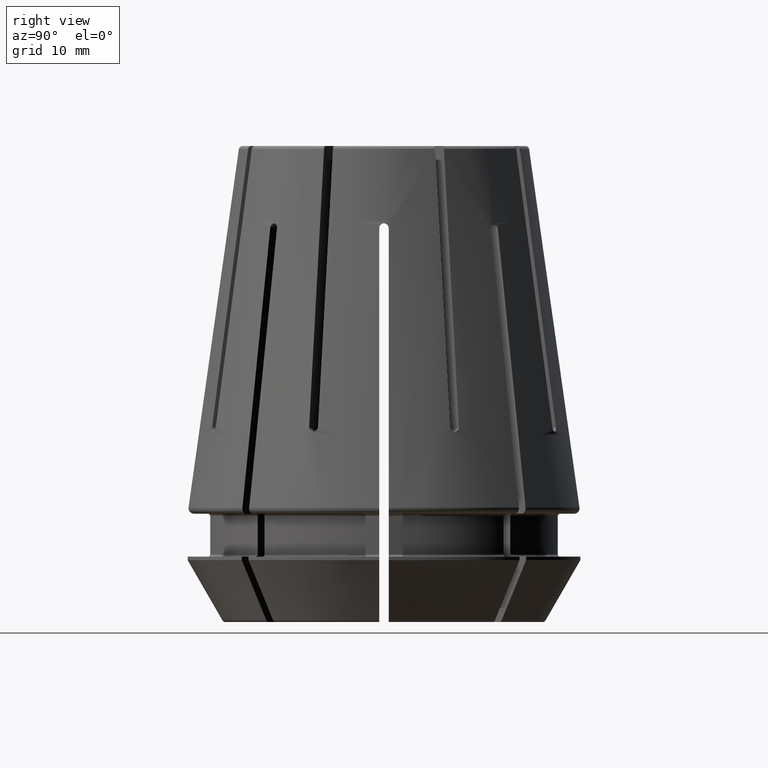
[diagram: clean part render]
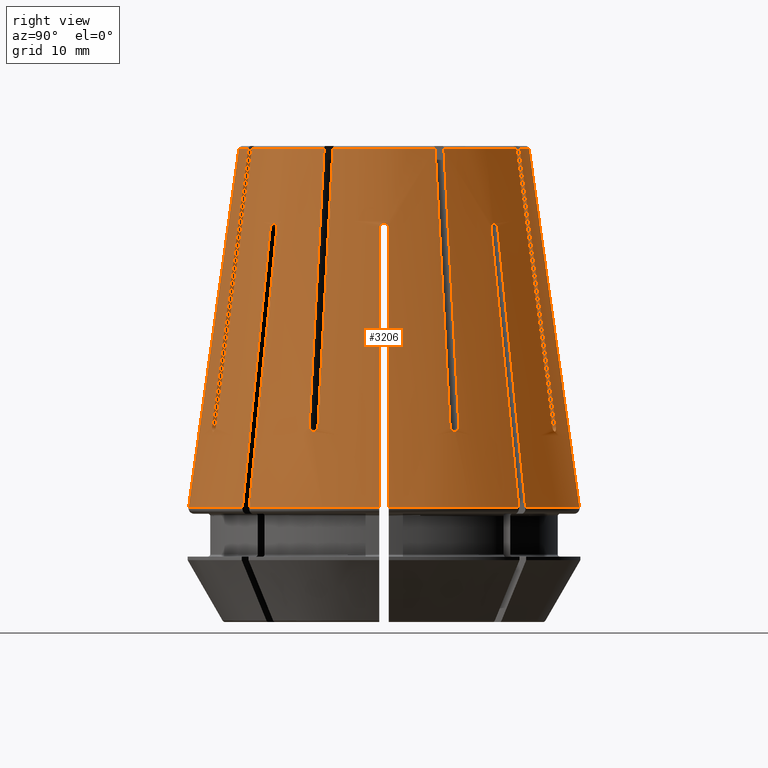
[diagram: same view with one face highlighted and labeled with its STEP entity id]
A machine part, right view. The second image highlights one B-rep face of the part: STEP entity #3206.
In plain terms, the highlighted conical surface has half-angle 8 deg.
Its self-contained STEP definition (entity closure, byte-faithful):
#393=CONICAL_SURFACE('',#3405,12.1572882076961,0.139626340159547);
#419=B_SPLINE_CURVE_WITH_KNOTS('',3,(#4626,#4627,#4628,#4629,#4630),
 .UNSPECIFIED.,.F.,.F.,(4,1,4),(8.67361737988403E-19,0.000625396481745378,
0.00125079296349075),.UNSPECIFIED.);
#421=B_SPLINE_CURVE_WITH_KNOTS('',3,(#4643,#4644,#4645,#4646,#4647),
 .UNSPECIFIED.,.F.,.F.,(4,1,4),(0.,0.000625396481745373,0.00125079296349075),
 .UNSPECIFIED.);
#423=B_SPLINE_CURVE_WITH_KNOTS('',3,(#4660,#4661,#4662,#4663,#4664),
 .UNSPECIFIED.,.F.,.F.,(4,1,4),(0.,0.00062539648174536,0.00125079296349072),
 .UNSPECIFIED.);
#425=B_SPLINE_CURVE_WITH_KNOTS('',3,(#4677,#4678,#4679,#4680,#4681),
 .UNSPECIFIED.,.F.,.F.,(4,1,4),(8.67361737988403E-19,0.000625396481745377,
0.00125079296349075),.UNSPECIFIED.);
#426=B_SPLINE_CURVE_WITH_KNOTS('',3,(#4683,#4684,#4685,#4686),
 .UNSPECIFIED.,.F.,.F.,(4,4),(0.00157891457330598,0.0252815484503016),
 .UNSPECIFIED.);
#427=B_SPLINE_CURVE_WITH_KNOTS('',3,(#4689,#4690,#4691,#4692,#4693,#4694,
#4695),.UNSPECIFIED.,.F.,.F.,(4,1,1,1,4),(0.,0.000319833708804002,0.000639667417608004,
0.000959501126412005,0.00127933483521601),.UNSPECIFIED.);
#428=B_SPLINE_CURVE_WITH_KNOTS('',3,(#4697,#4698,#4699,#4700),
 .UNSPECIFIED.,.F.,.F.,(4,4),(0.00157891457330597,0.0252815484503016),
 .UNSPECIFIED.);
#429=B_SPLINE_CURVE_WITH_KNOTS('',3,(#4704,#4705,#4706,#4707),
 .UNSPECIFIED.,.F.,.F.,(4,4),(0.0219629442518745,0.0456655781271856),
 .UNSPECIFIED.);
#430=B_SPLINE_CURVE_WITH_KNOTS('',3,(#4709,#4710,#4711,#4712,#4713,#4714,
#4715),.UNSPECIFIED.,.F.,.F.,(4,1,1,1,4),(5.42101086242752E-20,0.00031983370880401,
0.000639667417608021,0.000959501126412031,0.00127933483521604),
 .UNSPECIFIED.);
#431=B_SPLINE_CURVE_WITH_KNOTS('',3,(#4717,#4718,#4719,#4720),
 .UNSPECIFIED.,.F.,.F.,(4,4),(0.0219629442518745,0.0456655781271856),
 .UNSPECIFIED.);
#432=B_SPLINE_CURVE_WITH_KNOTS('',3,(#4724,#4725,#4726,#4727),
 .UNSPECIFIED.,.F.,.F.,(4,4),(2.01966674780406E-7,0.023702835843683),
 .UNSPECIFIED.);
#433=B_SPLINE_CURVE_WITH_KNOTS('',3,(#4729,#4730,#4731,#4732,#4733,#4734,
#4735),.UNSPECIFIED.,.F.,.F.,(4,1,1,1,4),(3.46944695195361E-18,0.000319833708804021,
0.000639667417608039,0.000959501126412057,0.00127933483521608),
 .UNSPECIFIED.);
#434=B_SPLINE_CURVE_WITH_KNOTS('',3,(#4737,#4738,#4739,#4740),
 .UNSPECIFIED.,.F.,.F.,(4,4),(2.01966674780836E-7,0.023702835843683),
 .UNSPECIFIED.);
#435=B_SPLINE_CURVE_WITH_KNOTS('',3,(#4744,#4745,#4746,#4747),
 .UNSPECIFIED.,.F.,.F.,(4,4),(0.0219629442518745,0.0456655781271856),
 .UNSPECIFIED.);
#436=B_SPLINE_CURVE_WITH_KNOTS('',3,(#4749,#4750,#4751,#4752,#4753,#4754,
#4755),.UNSPECIFIED.,.F.,.F.,(4,1,1,1,4),(0.,0.000319833708804,0.000639667417608001,
0.000959501126412001,0.001279334835216),.UNSPECIFIED.);
#437=B_SPLINE_CURVE_WITH_KNOTS('',3,(#4757,#4758,#4759,#4760),
 .UNSPECIFIED.,.F.,.F.,(4,4),(0.0219629442518745,0.0456655781271856),
 .UNSPECIFIED.);
#438=B_SPLINE_CURVE_WITH_KNOTS('',3,(#4764,#4765,#4766,#4767),
 .UNSPECIFIED.,.F.,.F.,(4,4),(2.01966674781158E-7,0.023702835843683),
 .UNSPECIFIED.);
#439=B_SPLINE_CURVE_WITH_KNOTS('',3,(#4769,#4770,#4771,#4772,#4773,#4774,
#4775),.UNSPECIFIED.,.F.,.F.,(4,1,1,1,4),(0.,0.00031983370880401,0.000639667417608021,
0.000959501126412031,0.00127933483521604),.UNSPECIFIED.);
#440=B_SPLINE_CURVE_WITH_KNOTS('',3,(#4777,#4778,#4779,#4780),
 .UNSPECIFIED.,.F.,.F.,(4,4),(2.01966674781158E-7,0.023702835843683),
 .UNSPECIFIED.);
#441=B_SPLINE_CURVE_WITH_KNOTS('',3,(#4784,#4785,#4786,#4787),
 .UNSPECIFIED.,.F.,.F.,(4,4),(0.0219629442518745,0.0456655781271856),
 .UNSPECIFIED.);
#442=B_SPLINE_CURVE_WITH_KNOTS('',3,(#4789,#4790,#4791,#4792,#4793,#4794,
#4795),.UNSPECIFIED.,.F.,.F.,(4,1,1,1,4),(0.,0.000319833708804005,0.00063966741760801,
0.000959501126412014,0.00127933483521602),.UNSPECIFIED.);
#443=B_SPLINE_CURVE_WITH_KNOTS('',3,(#4797,#4798,#4799,#4800),
 .UNSPECIFIED.,.F.,.F.,(4,4),(0.0219629442518745,0.0456655781271856),
 .UNSPECIFIED.);
#444=B_SPLINE_CURVE_WITH_KNOTS('',3,(#4804,#4805,#4806,#4807),
 .UNSPECIFIED.,.F.,.F.,(4,4),(0.00157891457330599,0.0252815484503016),
 .UNSPECIFIED.);
#445=B_SPLINE_CURVE_WITH_KNOTS('',3,(#4809,#4810,#4811,#4812,#4813,#4814,
#4815),.UNSPECIFIED.,.F.,.F.,(4,1,1,1,4),(0.,0.000319833708791347,0.000639667417582694,
0.00095950112637404,0.00127933483516539),.UNSPECIFIED.);
#446=B_SPLINE_CURVE_WITH_KNOTS('',3,(#4817,#4818,#4819,#4820),
 .UNSPECIFIED.,.F.,.F.,(4,4),(0.00157891457330598,0.0252815484503016),
 .UNSPECIFIED.);
#447=B_SPLINE_CURVE_WITH_KNOTS('',3,(#4824,#4825,#4826,#4827),
 .UNSPECIFIED.,.F.,.F.,(4,4),(0.0219629442518745,0.0456655781271856),
 .UNSPECIFIED.);
#448=B_SPLINE_CURVE_WITH_KNOTS('',3,(#4829,#4830,#4831,#4832,#4833,#4834,
#4835),.UNSPECIFIED.,.F.,.F.,(4,1,1,1,4),(0.,0.000319833708804005,0.000639667417608009,
0.000959501126412014,0.00127933483521602),.UNSPECIFIED.);
#449=B_SPLINE_CURVE_WITH_KNOTS('',3,(#4837,#4838,#4839,#4840),
 .UNSPECIFIED.,.F.,.F.,(4,4),(0.0219629442518745,0.0456655781271856),
 .UNSPECIFIED.);
#450=B_SPLINE_CURVE_WITH_KNOTS('',3,(#4843,#4844,#4845,#4846),
 .UNSPECIFIED.,.F.,.F.,(4,4),(2.0196762156207E-7,0.0235755884945952),
 .UNSPECIFIED.);
#451=B_SPLINE_CURVE_WITH_KNOTS('',3,(#4850,#4851,#4852,#4853),
 .UNSPECIFIED.,.F.,.F.,(4,4),(2.0196762156207E-7,0.0235755884945953),
 .UNSPECIFIED.);
#452=B_SPLINE_CURVE_WITH_KNOTS('',3,(#4855,#4856,#4857,#4858,#4859),
 .UNSPECIFIED.,.F.,.F.,(4,1,4),(8.67361737988404E-19,0.000625396481745377,
0.00125079296349075),.UNSPECIFIED.);
#453=B_SPLINE_CURVE_WITH_KNOTS('',3,(#4861,#4862,#4863,#4864),
 .UNSPECIFIED.,.F.,.F.,(4,4),(2.0196762156207E-7,0.0235755884945952),
 .UNSPECIFIED.);
#454=B_SPLINE_CURVE_WITH_KNOTS('',3,(#4868,#4869,#4870,#4871),
 .UNSPECIFIED.,.F.,.F.,(4,4),(2.0196762156207E-7,0.0235755884945953),
 .UNSPECIFIED.);
#455=B_SPLINE_CURVE_WITH_KNOTS('',3,(#4872,#4873,#4874,#4875),
 .UNSPECIFIED.,.F.,.F.,(4,4),(2.0196762156207E-7,0.0235755884945952),
 .UNSPECIFIED.);
#456=B_SPLINE_CURVE_WITH_KNOTS('',3,(#4879,#4880,#4881,#4882),
 .UNSPECIFIED.,.F.,.F.,(4,4),(2.0196762156207E-7,0.0235755884945953),
 .UNSPECIFIED.);
#457=B_SPLINE_CURVE_WITH_KNOTS('',3,(#4884,#4885,#4886,#4887,#4888),
 .UNSPECIFIED.,.F.,.F.,(4,1,4),(8.67361737988404E-19,0.000625396481745376,
0.00125079296349075),.UNSPECIFIED.);
#458=B_SPLINE_CURVE_WITH_KNOTS('',3,(#4890,#4891,#4892,#4893),
 .UNSPECIFIED.,.F.,.F.,(4,4),(2.0196762156207E-7,0.0235755884945952),
 .UNSPECIFIED.);
#459=B_SPLINE_CURVE_WITH_KNOTS('',3,(#4897,#4898,#4899,#4900),
 .UNSPECIFIED.,.F.,.F.,(4,4),(0.00204161722724849,0.0256170037541977),
 .UNSPECIFIED.);
#460=B_SPLINE_CURVE_WITH_KNOTS('',3,(#4901,#4902,#4903,#4904),
 .UNSPECIFIED.,.F.,.F.,(4,4),(0.00204161722724849,0.0256170037541977),
 .UNSPECIFIED.);
#461=B_SPLINE_CURVE_WITH_KNOTS('',3,(#4908,#4909,#4910,#4911),
 .UNSPECIFIED.,.F.,.F.,(4,4),(0.00204161722724848,0.0256170037541977),
 .UNSPECIFIED.);
#462=B_SPLINE_CURVE_WITH_KNOTS('',3,(#4913,#4914,#4915,#4916,#4917),
 .UNSPECIFIED.,.F.,.F.,(4,1,4),(0.,0.000625396481745361,0.00125079296349072),
 .UNSPECIFIED.);
#463=B_SPLINE_CURVE_WITH_KNOTS('',3,(#4919,#4920,#4921,#4922),
 .UNSPECIFIED.,.F.,.F.,(4,4),(0.00204161722724848,0.0256170037541977),
 .UNSPECIFIED.);
#464=B_SPLINE_CURVE_WITH_KNOTS('',3,(#4926,#4927,#4928,#4929),
 .UNSPECIFIED.,.F.,.F.,(4,4),(0.00204161722724849,0.0256170037541977),
 .UNSPECIFIED.);
#465=B_SPLINE_CURVE_WITH_KNOTS('',3,(#4930,#4931,#4932,#4933),
 .UNSPECIFIED.,.F.,.F.,(4,4),(0.00204161722724848,0.0256170037541977),
 .UNSPECIFIED.);
#466=B_SPLINE_CURVE_WITH_KNOTS('',3,(#4937,#4938,#4939,#4940),
 .UNSPECIFIED.,.F.,.F.,(4,4),(0.00204161722724849,0.0256170037541977),
 .UNSPECIFIED.);
#467=B_SPLINE_CURVE_WITH_KNOTS('',3,(#4942,#4943,#4944,#4945,#4946),
 .UNSPECIFIED.,.F.,.F.,(4,1,4),(1.44096954211131E-17,0.000625396481745375,
0.00125079296349073),.UNSPECIFIED.);
#468=B_SPLINE_CURVE_WITH_KNOTS('',3,(#4948,#4949,#4950,#4951),
 .UNSPECIFIED.,.F.,.F.,(4,4),(0.00204161722724848,0.0256170037541977),
 .UNSPECIFIED.);
#469=B_SPLINE_CURVE_WITH_KNOTS('',3,(#4955,#4956,#4957,#4958),
 .UNSPECIFIED.,.F.,.F.,(4,4),(2.0196762156207E-7,0.0235755884945953),
 .UNSPECIFIED.);
#642=ORIENTED_EDGE('',*,*,#1706,.F.);
#643=ORIENTED_EDGE('',*,*,#1707,.T.);
#644=ORIENTED_EDGE('',*,*,#1708,.T.);
#645=ORIENTED_EDGE('',*,*,#1709,.T.);
#646=ORIENTED_EDGE('',*,*,#1710,.T.);
#647=ORIENTED_EDGE('',*,*,#1711,.T.);
#648=ORIENTED_EDGE('',*,*,#1712,.F.);
#649=ORIENTED_EDGE('',*,*,#1713,.T.);
#650=ORIENTED_EDGE('',*,*,#1714,.T.);
#651=ORIENTED_EDGE('',*,*,#1715,.T.);
#652=ORIENTED_EDGE('',*,*,#1716,.F.);
#653=ORIENTED_EDGE('',*,*,#1717,.T.);
#654=ORIENTED_EDGE('',*,*,#1718,.T.);
#655=ORIENTED_EDGE('',*,*,#1719,.T.);
#656=ORIENTED_EDGE('',*,*,#1720,.F.);
#657=ORIENTED_EDGE('',*,*,#1721,.T.);
#658=ORIENTED_EDGE('',*,*,#1722,.T.);
#659=ORIENTED_EDGE('',*,*,#1723,.T.);
#660=ORIENTED_EDGE('',*,*,#1724,.F.);
#661=ORIENTED_EDGE('',*,*,#1725,.T.);
#662=ORIENTED_EDGE('',*,*,#1726,.F.);
#663=ORIENTED_EDGE('',*,*,#1727,.T.);
#664=ORIENTED_EDGE('',*,*,#1728,.T.);
#665=ORIENTED_EDGE('',*,*,#1729,.T.);
#666=ORIENTED_EDGE('',*,*,#1730,.F.);
#667=ORIENTED_EDGE('',*,*,#1731,.T.);
#668=ORIENTED_EDGE('',*,*,#1732,.T.);
#669=ORIENTED_EDGE('',*,*,#1733,.T.);
#670=ORIENTED_EDGE('',*,*,#1734,.F.);
#671=ORIENTED_EDGE('',*,*,#1735,.T.);
#672=ORIENTED_EDGE('',*,*,#1736,.T.);
#673=ORIENTED_EDGE('',*,*,#1737,.T.);
#674=ORIENTED_EDGE('',*,*,#1705,.T.);
#675=ORIENTED_EDGE('',*,*,#1738,.F.);
#676=ORIENTED_EDGE('',*,*,#1739,.T.);
#677=ORIENTED_EDGE('',*,*,#1740,.T.);
#678=ORIENTED_EDGE('',*,*,#1741,.T.);
#679=ORIENTED_EDGE('',*,*,#1742,.F.);
#680=ORIENTED_EDGE('',*,*,#1743,.T.);
#681=ORIENTED_EDGE('',*,*,#1744,.T.);
#682=ORIENTED_EDGE('',*,*,#1693,.T.);
#683=ORIENTED_EDGE('',*,*,#1745,.F.);
#684=ORIENTED_EDGE('',*,*,#1746,.T.);
#685=ORIENTED_EDGE('',*,*,#1747,.T.);
#686=ORIENTED_EDGE('',*,*,#1748,.T.);
#687=ORIENTED_EDGE('',*,*,#1749,.F.);
#688=ORIENTED_EDGE('',*,*,#1750,.T.);
#689=ORIENTED_EDGE('',*,*,#1751,.F.);
#690=ORIENTED_EDGE('',*,*,#1697,.T.);
#691=ORIENTED_EDGE('',*,*,#1752,.T.);
#692=ORIENTED_EDGE('',*,*,#1753,.T.);
#693=ORIENTED_EDGE('',*,*,#1754,.F.);
#694=ORIENTED_EDGE('',*,*,#1755,.T.);
#695=ORIENTED_EDGE('',*,*,#1756,.T.);
#696=ORIENTED_EDGE('',*,*,#1757,.T.);
#697=ORIENTED_EDGE('',*,*,#1758,.F.);
#698=ORIENTED_EDGE('',*,*,#1701,.T.);
#699=ORIENTED_EDGE('',*,*,#1759,.T.);
#700=ORIENTED_EDGE('',*,*,#1760,.T.);
#701=ORIENTED_EDGE('',*,*,#1761,.F.);
#702=ORIENTED_EDGE('',*,*,#1762,.T.);
#703=ORIENTED_EDGE('',*,*,#1763,.T.);
#704=ORIENTED_EDGE('',*,*,#1764,.T.);
#705=ORIENTED_EDGE('',*,*,#1765,.T.);
#1693=EDGE_CURVE('',#2223,#2225,#419,.T.);
#1697=EDGE_CURVE('',#2227,#2229,#421,.T.);
#1701=EDGE_CURVE('',#2231,#2233,#423,.T.);
#1705=EDGE_CURVE('',#2235,#2237,#425,.T.);
#1706=EDGE_CURVE('',#2238,#2239,#426,.T.);
#1707=EDGE_CURVE('',#2238,#2240,#427,.T.);
#1708=EDGE_CURVE('',#2240,#2241,#428,.T.);
#1709=EDGE_CURVE('',#2241,#2242,#2586,.T.);
#1710=EDGE_CURVE('',#2242,#2243,#429,.F.);
#1711=EDGE_CURVE('',#2243,#2244,#430,.T.);
#1712=EDGE_CURVE('',#2245,#2244,#431,.F.);
#1713=EDGE_CURVE('',#2245,#2246,#2587,.T.);
#1714=EDGE_CURVE('',#2246,#2247,#432,.T.);
#1715=EDGE_CURVE('',#2247,#2248,#433,.T.);
#1716=EDGE_CURVE('',#2249,#2248,#434,.T.);
#1717=EDGE_CURVE('',#2249,#2250,#2588,.T.);
#1718=EDGE_CURVE('',#2250,#2251,#435,.F.);
#1719=EDGE_CURVE('',#2251,#2252,#436,.T.);
#1720=EDGE_CURVE('',#2253,#2252,#437,.F.);
#1721=EDGE_CURVE('',#2253,#2254,#2589,.T.);
#1722=EDGE_CURVE('',#2254,#2255,#438,.T.);
#1723=EDGE_CURVE('',#2255,#2256,#439,.T.);
#1724=EDGE_CURVE('',#2257,#2256,#440,.T.);
#1725=EDGE_CURVE('',#2257,#2258,#2590,.T.);
#1726=EDGE_CURVE('',#2259,#2258,#441,.T.);
#1727=EDGE_CURVE('',#2259,#2260,#442,.T.);
#1728=EDGE_CURVE('',#2260,#2261,#443,.T.);
#1729=EDGE_CURVE('',#2261,#2262,#2591,.T.);
#1730=EDGE_CURVE('',#2263,#2262,#444,.T.);
#1731=EDGE_CURVE('',#2263,#2264,#445,.T.);
#1732=EDGE_CURVE('',#2264,#2265,#446,.T.);
#1733=EDGE_CURVE('',#2265,#2266,#2592,.T.);
#1734=EDGE_CURVE('',#2267,#2266,#447,.T.);
#1735=EDGE_CURVE('',#2267,#2268,#448,.T.);
#1736=EDGE_CURVE('',#2268,#2269,#449,.T.);
#1737=EDGE_CURVE('',#2269,#2239,#2593,.T.);
#1738=EDGE_CURVE('',#2270,#2237,#450,.T.);
#1739=EDGE_CURVE('',#2270,#2271,#2594,.F.);
#1740=EDGE_CURVE('',#2271,#2272,#451,.T.);
#1741=EDGE_CURVE('',#2272,#2273,#452,.T.);
#1742=EDGE_CURVE('',#2274,#2273,#453,.T.);
#1743=EDGE_CURVE('',#2274,#2275,#2595,.F.);
#1744=EDGE_CURVE('',#2275,#2223,#454,.T.);
#1745=EDGE_CURVE('',#2276,#2225,#455,.T.);
#1746=EDGE_CURVE('',#2276,#2277,#2596,.F.);
#1747=EDGE_CURVE('',#2277,#2278,#456,.T.);
#1748=EDGE_CURVE('',#2278,#2279,#457,.T.);
#1749=EDGE_CURVE('',#2280,#2279,#458,.T.);
#1750=EDGE_CURVE('',#2280,#2281,#2597,.F.);
#1751=EDGE_CURVE('',#2227,#2281,#459,.T.);
#1752=EDGE_CURVE('',#2229,#2282,#460,.T.);
#1753=EDGE_CURVE('',#2282,#2283,#2598,.F.);
#1754=EDGE_CURVE('',#2284,#2283,#461,.T.);
#1755=EDGE_CURVE('',#2284,#2285,#462,.T.);
#1756=EDGE_CURVE('',#2285,#2286,#463,.T.);
#1757=EDGE_CURVE('',#2286,#2287,#2599,.F.);
#1758=EDGE_CURVE('',#2231,#2287,#464,.T.);
#1759=EDGE_CURVE('',#2233,#2288,#465,.T.);
#1760=EDGE_CURVE('',#2288,#2289,#2600,.F.);
#1761=EDGE_CURVE('',#2290,#2289,#466,.T.);
#1762=EDGE_CURVE('',#2290,#2291,#467,.T.);
#1763=EDGE_CURVE('',#2291,#2292,#468,.T.);
#1764=EDGE_CURVE('',#2292,#2293,#2601,.F.);
#1765=EDGE_CURVE('',#2293,#2235,#469,.T.);
#2223=VERTEX_POINT('',#4617);
#2225=VERTEX_POINT('',#4625);
#2227=VERTEX_POINT('',#4634);
#2229=VERTEX_POINT('',#4642);
#2231=VERTEX_POINT('',#4651);
#2233=VERTEX_POINT('',#4659);
#2235=VERTEX_POINT('',#4668);
#2237=VERTEX_POINT('',#4676);
#2238=VERTEX_POINT('',#4687);
#2239=VERTEX_POINT('',#4688);
#2240=VERTEX_POINT('',#4696);
#2241=VERTEX_POINT('',#4701);
#2242=VERTEX_POINT('',#4703);
#2243=VERTEX_POINT('',#4708);
#2244=VERTEX_POINT('',#4716);
#2245=VERTEX_POINT('',#4721);
#2246=VERTEX_POINT('',#4723);
#2247=VERTEX_POINT('',#4728);
#2248=VERTEX_POINT('',#4736);
#2249=VERTEX_POINT('',#4741);
#2250=VERTEX_POINT('',#4743);
#2251=VERTEX_POINT('',#4748);
#2252=VERTEX_POINT('',#4756);
#2253=VERTEX_POINT('',#4761);
#2254=VERTEX_POINT('',#4763);
#2255=VERTEX_POINT('',#4768);
#2256=VERTEX_POINT('',#4776);
#2257=VERTEX_POINT('',#4781);
#2258=VERTEX_POINT('',#4783);
#2259=VERTEX_POINT('',#4788);
#2260=VERTEX_POINT('',#4796);
#2261=VERTEX_POINT('',#4801);
#2262=VERTEX_POINT('',#4803);
#2263=VERTEX_POINT('',#4808);
#2264=VERTEX_POINT('',#4816);
#2265=VERTEX_POINT('',#4821);
#2266=VERTEX_POINT('',#4823);
#2267=VERTEX_POINT('',#4828);
#2268=VERTEX_POINT('',#4836);
#2269=VERTEX_POINT('',#4841);
#2270=VERTEX_POINT('',#4847);
#2271=VERTEX_POINT('',#4849);
#2272=VERTEX_POINT('',#4854);
#2273=VERTEX_POINT('',#4860);
#2274=VERTEX_POINT('',#4865);
#2275=VERTEX_POINT('',#4867);
#2276=VERTEX_POINT('',#4876);
#2277=VERTEX_POINT('',#4878);
#2278=VERTEX_POINT('',#4883);
#2279=VERTEX_POINT('',#4889);
#2280=VERTEX_POINT('',#4894);
#2281=VERTEX_POINT('',#4896);
#2282=VERTEX_POINT('',#4905);
#2283=VERTEX_POINT('',#4907);
#2284=VERTEX_POINT('',#4912);
#2285=VERTEX_POINT('',#4918);
#2286=VERTEX_POINT('',#4923);
#2287=VERTEX_POINT('',#4925);
#2288=VERTEX_POINT('',#4934);
#2289=VERTEX_POINT('',#4936);
#2290=VERTEX_POINT('',#4941);
#2291=VERTEX_POINT('',#4947);
#2292=VERTEX_POINT('',#4952);
#2293=VERTEX_POINT('',#4954);
#2586=CIRCLE('',#3406,16.4279548476843);
#2587=CIRCLE('',#3407,16.4279548476843);
#2588=CIRCLE('',#3408,16.4279548476843);
#2589=CIRCLE('',#3409,16.4279548476843);
#2590=CIRCLE('',#3410,16.4279548476843);
#2591=CIRCLE('',#3411,16.4279548476843);
#2592=CIRCLE('',#3412,16.4279548476843);
#2593=CIRCLE('',#3413,16.4279548476843);
#2594=CIRCLE('',#3414,12.1935826069737);
#2595=CIRCLE('',#3415,12.1935826069737);
#2596=CIRCLE('',#3416,12.1935826069737);
#2597=CIRCLE('',#3417,12.1935826069737);
#2598=CIRCLE('',#3418,12.1935826069737);
#2599=CIRCLE('',#3419,12.1935826069737);
#2600=CIRCLE('',#3420,12.1935826069737);
#2601=CIRCLE('',#3421,12.1935826069737);
#2762=EDGE_LOOP('',(#642,#643,#644,#645,#646,#647,#648,#649,#650,#651,#652,
#653,#654,#655,#656,#657,#658,#659,#660,#661,#662,#663,#664,#665,#666,#667,
#668,#669,#670,#671,#672,#673));
#2763=EDGE_LOOP('',(#674,#675,#676,#677,#678,#679,#680,#681,#682,#683,#684,
#685,#686,#687,#688,#689,#690,#691,#692,#693,#694,#695,#696,#697,#698,#699,
#700,#701,#702,#703,#704,#705));
#2950=FACE_BOUND('',#2762,.T.);
#2951=FACE_BOUND('',#2763,.T.);
#3206=ADVANCED_FACE('',(#2950,#2951),#393,.T.);
#3405=AXIS2_PLACEMENT_3D('',#4682,#3777,#3778);
#3406=AXIS2_PLACEMENT_3D('',#4702,#3779,#3780);
#3407=AXIS2_PLACEMENT_3D('',#4722,#3781,#3782);
#3408=AXIS2_PLACEMENT_3D('',#4742,#3783,#3784);
#3409=AXIS2_PLACEMENT_3D('',#4762,#3785,#3786);
#3410=AXIS2_PLACEMENT_3D('',#4782,#3787,#3788);
#3411=AXIS2_PLACEMENT_3D('',#4802,#3789,#3790);
#3412=AXIS2_PLACEMENT_3D('',#4822,#3791,#3792);
#3413=AXIS2_PLACEMENT_3D('',#4842,#3793,#3794);
#3414=AXIS2_PLACEMENT_3D('',#4848,#3795,#3796);
#3415=AXIS2_PLACEMENT_3D('',#4866,#3797,#3798);
#3416=AXIS2_PLACEMENT_3D('',#4877,#3799,#3800);
#3417=AXIS2_PLACEMENT_3D('',#4895,#3801,#3802);
#3418=AXIS2_PLACEMENT_3D('',#4906,#3803,#3804);
#3419=AXIS2_PLACEMENT_3D('',#4924,#3805,#3806);
#3420=AXIS2_PLACEMENT_3D('',#4935,#3807,#3808);
#3421=AXIS2_PLACEMENT_3D('',#4953,#3809,#3810);
#3777=DIRECTION('',(0.,0.,-1.));
#3778=DIRECTION('',(-1.,0.,0.));
#3779=DIRECTION('',(0.,0.,1.));
#3780=DIRECTION('',(1.,0.,0.));
#3781=DIRECTION('',(0.,0.,1.));
#3782=DIRECTION('',(1.,0.,0.));
#3783=DIRECTION('',(0.,0.,1.));
#3784=DIRECTION('',(1.,0.,0.));
#3785=DIRECTION('',(0.,0.,1.));
#3786=DIRECTION('',(1.,0.,0.));
#3787=DIRECTION('',(0.,0.,1.));
#3788=DIRECTION('',(1.,0.,0.));
#3789=DIRECTION('',(0.,0.,1.));
#3790=DIRECTION('',(1.,0.,0.));
#3791=DIRECTION('',(0.,0.,1.));
#3792=DIRECTION('',(1.,0.,0.));
#3793=DIRECTION('',(0.,0.,1.));
#3794=DIRECTION('',(1.,0.,0.));
#3795=DIRECTION('',(0.,0.,1.));
#3796=DIRECTION('',(1.,0.,0.));
#3797=DIRECTION('',(0.,0.,1.));
#3798=DIRECTION('',(1.,0.,0.));
#3799=DIRECTION('',(0.,0.,1.));
#3800=DIRECTION('',(1.,0.,0.));
#3801=DIRECTION('',(0.,0.,1.));
#3802=DIRECTION('',(1.,0.,0.));
#3803=DIRECTION('',(0.,0.,1.));
#3804=DIRECTION('',(1.,0.,0.));
#3805=DIRECTION('',(0.,0.,1.));
#3806=DIRECTION('',(1.,0.,0.));
#3807=DIRECTION('',(0.,0.,1.));
#3808=DIRECTION('',(1.,0.,0.));
#3809=DIRECTION('',(0.,0.,1.));
#3810=DIRECTION('',(1.,0.,0.));
#4617=CARTESIAN_POINT('',(-5.55034836952397,-14.4449766815013,7.29599132422869));
#4625=CARTESIAN_POINT('',(-6.289451995533,-14.1388299356092,7.29599132422872));
#4626=CARTESIAN_POINT('',(-5.55034836952397,-14.4449766815013,7.2959913242287));
#4627=CARTESIAN_POINT('',(-5.56161432987369,-14.4721751157707,7.08658929220454));
#4628=CARTESIAN_POINT('',(-5.95517157857956,-14.3770982715302,6.71341148661196));
#4629=CARTESIAN_POINT('',(-6.30071803966698,-14.1660285721518,7.08658773489447));
#4630=CARTESIAN_POINT('',(-6.289451995533,-14.1388299356092,7.2959913242287));
#4634=CARTESIAN_POINT('',(-14.4449766815013,5.55034836952397,7.2959913242287));
#4642=CARTESIAN_POINT('',(-14.1388299356092,6.289451995533,7.2959913242287));
#4643=CARTESIAN_POINT('',(-14.4449766815013,5.55034836952397,7.2959913242287));
#4644=CARTESIAN_POINT('',(-14.4721751157707,5.5616143298737,7.08658929220455));
#4645=CARTESIAN_POINT('',(-14.3770982715302,5.95517157857954,6.7134114866119));
#4646=CARTESIAN_POINT('',(-14.1660285721517,6.30071803966698,7.08658773489447));
#4647=CARTESIAN_POINT('',(-14.1388299356092,6.289451995533,7.2959913242287));
#4651=CARTESIAN_POINT('',(5.55034836952397,14.4449766815013,7.29599132422869));
#4659=CARTESIAN_POINT('',(6.289451995533,14.1388299356092,7.29599132422868));
#4660=CARTESIAN_POINT('',(5.55034836952397,14.4449766815013,7.29599132422869));
#4661=CARTESIAN_POINT('',(5.5616143298737,14.4721751157707,7.08658929220455));
#4662=CARTESIAN_POINT('',(5.95517157857953,14.3770982715302,6.71341148661191));
#4663=CARTESIAN_POINT('',(6.30071803966698,14.1660285721518,7.08658773489446));
#4664=CARTESIAN_POINT('',(6.289451995533,14.1388299356092,7.29599132422868));
#4668=CARTESIAN_POINT('',(14.4449766815013,-5.55034836952397,7.29599132422869));
#4676=CARTESIAN_POINT('',(14.1388299356092,-6.289451995533,7.29599132422872));
#4677=CARTESIAN_POINT('',(14.4449766815013,-5.55034836952397,7.2959913242287));
#4678=CARTESIAN_POINT('',(14.4721751157707,-5.56161432987369,7.08658929220454));
#4679=CARTESIAN_POINT('',(14.3770982715302,-5.95517157857957,6.71341148661191));
#4680=CARTESIAN_POINT('',(14.1660285721518,-6.30071803966698,7.08658773489447));
#4681=CARTESIAN_POINT('',(14.1388299356092,-6.289451995533,7.2959913242287));
#4682=CARTESIAN_POINT('',(0.,0.,30.9));
#4683=CARTESIAN_POINT('',(8.99660075872335,-9.56228618367257,23.984420616664));
#4684=CARTESIAN_POINT('',(9.77448218600933,-10.3401676109586,16.1605038545526));
#4685=CARTESIAN_POINT('',(10.5522781783614,-11.1179636033107,8.33657010514536));
#4686=CARTESIAN_POINT('',(11.3300316190066,-11.8957170439559,0.512627895432026));
#4687=CARTESIAN_POINT('',(8.99660075872335,-9.56228618367257,23.984420616664));
#4688=CARTESIAN_POINT('',(11.3300316190066,-11.8957170439559,0.512627895432021));
#4689=CARTESIAN_POINT('',(8.99660075872335,-9.56228618367257,23.984420616664));
#4690=CARTESIAN_POINT('',(8.98595662668012,-9.55164205162935,24.091479096517));
#4691=CARTESIAN_POINT('',(9.023722841913,-9.47577642332014,24.3036697339095));
#4692=CARTESIAN_POINT('',(9.2386052151661,-9.23903802384558,24.4479807617733));
#4693=CARTESIAN_POINT('',(9.47534148123743,-9.02403301699258,24.3044065573343));
#4694=CARTESIAN_POINT('',(9.55163982499861,-8.98595440004936,24.0915014919272));
#4695=CARTESIAN_POINT('',(9.56228618367258,-8.99660075872333,23.984420616664));
#4696=CARTESIAN_POINT('',(9.56228618367258,-8.99660075872333,23.984420616664));
#4697=CARTESIAN_POINT('',(9.56228618367258,-8.99660075872333,23.984420616664));
#4698=CARTESIAN_POINT('',(10.3401676109586,-9.77448218600931,16.1605038545526));
#4699=CARTESIAN_POINT('',(11.1179636033107,-10.5522781783614,8.33657010514536));
#4700=CARTESIAN_POINT('',(11.8957170439559,-11.3300316190066,0.512627895432019));
#4701=CARTESIAN_POINT('',(11.8957170439559,-11.3300316190066,0.512627895432021));
#4702=CARTESIAN_POINT('',(0.,0.,0.512627895432022));
#4703=CARTESIAN_POINT('',(16.4230843777152,-0.4,0.512627895432022));
#4704=CARTESIAN_POINT('',(13.1231148082426,-0.4,23.984420616664));
#4705=CARTESIAN_POINT('',(14.2232052726411,-0.4,16.1605038544638));
#4706=CARTESIAN_POINT('',(15.3231749137865,-0.4,8.33657010504512));
#4707=CARTESIAN_POINT('',(16.4230843777152,-0.4,0.512627895432032));
#4708=CARTESIAN_POINT('',(13.1231148082426,-0.4,23.984420616664));
#4709=CARTESIAN_POINT('',(13.1231148082426,-0.4,23.984420616664));
#4710=CARTESIAN_POINT('',(13.1080617323474,-0.4,24.091479096517));
#4711=CARTESIAN_POINT('',(13.0811213790019,-0.319650152872665,24.3036697339095));
#4712=CARTESIAN_POINT('',(13.0656668346509,-0.000306041952214132,24.4479807617732));
#4713=CARTESIAN_POINT('',(13.0810331554079,0.319123275474432,24.3044065573343));
#4714=CARTESIAN_POINT('',(13.108058583416,0.4,24.0915014919272));
#4715=CARTESIAN_POINT('',(13.1231148082426,0.4,23.984420616664));
#4716=CARTESIAN_POINT('',(13.1231148082426,0.4,23.984420616664));
#4717=CARTESIAN_POINT('',(13.1231148082426,0.4,23.984420616664));
#4718=CARTESIAN_POINT('',(14.2232052726411,0.4,16.1605038544638));
#4719=CARTESIAN_POINT('',(15.3231749137865,0.4,8.33657010504512));
#4720=CARTESIAN_POINT('',(16.4230843777152,0.4,0.512627895432032));
#4721=CARTESIAN_POINT('',(16.4230843777152,0.4,0.512627895432022));
#4722=CARTESIAN_POINT('',(0.,0.,0.512627895432022));
#4723=CARTESIAN_POINT('',(11.8957170439559,11.3300316190066,0.512627895432021));
#4724=CARTESIAN_POINT('',(11.8957170439559,11.3300316190066,0.512627895432022));
#4725=CARTESIAN_POINT('',(11.1179636033044,10.5522781783552,8.33657010520839));
#4726=CARTESIAN_POINT('',(10.3401676109694,9.7744821860202,16.1605038544432));
#4727=CARTESIAN_POINT('',(9.56228618367258,8.99660075872334,23.984420616664));
#4728=CARTESIAN_POINT('',(9.56228618367258,8.99660075872334,23.984420616664));
#4729=CARTESIAN_POINT('',(9.56228618367266,8.99660075872343,23.984420616664));
#4730=CARTESIAN_POINT('',(9.55164205162944,8.9859566266802,24.091479096517));
#4731=CARTESIAN_POINT('',(9.47577642332013,9.02372284191293,24.3036697339095));
#4732=CARTESIAN_POINT('',(9.23903802384559,9.2386052151661,24.4479807617732));
#4733=CARTESIAN_POINT('',(9.02403301699257,9.47534148123744,24.3044065573343));
#4734=CARTESIAN_POINT('',(8.98595440004937,9.55163982499861,24.0915014919272));
#4735=CARTESIAN_POINT('',(8.99660075872334,9.56228618367258,23.984420616664));
#4736=CARTESIAN_POINT('',(8.99660075872334,9.56228618367258,23.984420616664));
#4737=CARTESIAN_POINT('',(11.3300316190066,11.8957170439559,0.512627895432022));
#4738=CARTESIAN_POINT('',(10.5522781783552,11.1179636033044,8.33657010520839));
#4739=CARTESIAN_POINT('',(9.77448218602019,10.3401676109694,16.1605038544432));
#4740=CARTESIAN_POINT('',(8.99660075872334,9.56228618367258,23.984420616664));
#4741=CARTESIAN_POINT('',(11.3300316190066,11.8957170439559,0.512627895432022));
#4742=CARTESIAN_POINT('',(0.,0.,0.512627895432022));
#4743=CARTESIAN_POINT('',(0.400000000000002,16.4230843777152,0.512627895432021));
#4744=CARTESIAN_POINT('',(0.400000000000003,13.1231148082426,23.984420616664));
#4745=CARTESIAN_POINT('',(0.400000000000003,14.2232052726411,16.1605038544638));
#4746=CARTESIAN_POINT('',(0.400000000000003,15.3231749137865,8.33657010504511));
#4747=CARTESIAN_POINT('',(0.400000000000002,16.4230843777152,0.512627895432018));
#4748=CARTESIAN_POINT('',(0.400000000000003,13.1231148082426,23.984420616664));
#4749=CARTESIAN_POINT('',(0.400000000000003,13.1231148082426,23.984420616664));
#4750=CARTESIAN_POINT('',(0.400000000000003,13.1080617323474,24.091479096517));
#4751=CARTESIAN_POINT('',(0.319650152872659,13.0811213790019,24.3036697339095));
#4752=CARTESIAN_POINT('',(0.000306041952219507,13.0656668346509,24.4479807617733));
#4753=CARTESIAN_POINT('',(-0.319123275474415,13.0810331554079,24.3044065573343));
#4754=CARTESIAN_POINT('',(-0.399999999999997,13.108058583416,24.0915014919272));
#4755=CARTESIAN_POINT('',(-0.399999999999997,13.1231148082426,23.984420616664));
#4756=CARTESIAN_POINT('',(-0.399999999999997,13.1231148082426,23.984420616664));
#4757=CARTESIAN_POINT('',(-0.399999999999997,13.1231148082426,23.984420616664));
#4758=CARTESIAN_POINT('',(-0.399999999999997,14.2232052726411,16.1605038544638));
#4759=CARTESIAN_POINT('',(-0.399999999999997,15.3231749137865,8.33657010504511));
#4760=CARTESIAN_POINT('',(-0.399999999999998,16.4230843777152,0.512627895432018));
#4761=CARTESIAN_POINT('',(-0.399999999999998,16.4230843777152,0.512627895432021));
#4762=CARTESIAN_POINT('',(0.,0.,0.512627895432022));
#4763=CARTESIAN_POINT('',(-11.3300316190066,11.8957170439559,0.512627895432021));
#4764=CARTESIAN_POINT('',(-11.3300316190066,11.8957170439559,0.512627895432022));
#4765=CARTESIAN_POINT('',(-10.5522781783552,11.1179636033044,8.33657010520839));
#4766=CARTESIAN_POINT('',(-9.77448218602019,10.3401676109694,16.1605038544432));
#4767=CARTESIAN_POINT('',(-8.99660075872334,9.56228618367258,23.984420616664));
#4768=CARTESIAN_POINT('',(-8.99660075872334,9.56228618367258,23.984420616664));
#4769=CARTESIAN_POINT('',(-8.99660075872343,9.56228618367267,23.984420616664));
#4770=CARTESIAN_POINT('',(-8.9859566266802,9.55164205162944,24.091479096517));
#4771=CARTESIAN_POINT('',(-9.02372284191293,9.47577642332013,24.3036697339095));
#4772=CARTESIAN_POINT('',(-9.23860521516609,9.2390380238456,24.4479807617732));
#4773=CARTESIAN_POINT('',(-9.47534148123743,9.02403301699258,24.3044065573344));
#4774=CARTESIAN_POINT('',(-9.55163982499861,8.98595440004937,24.0915014919272));
#4775=CARTESIAN_POINT('',(-9.56228618367258,8.99660075872334,23.984420616664));
#4776=CARTESIAN_POINT('',(-9.56228618367257,8.99660075872334,23.984420616664));
#4777=CARTESIAN_POINT('',(-11.8957170439559,11.3300316190066,0.512627895432022));
#4778=CARTESIAN_POINT('',(-11.1179636033044,10.5522781783552,8.3365701052084));
#4779=CARTESIAN_POINT('',(-10.3401676109694,9.7744821860202,16.1605038544432));
#4780=CARTESIAN_POINT('',(-9.56228618367257,8.99660075872334,23.984420616664));
#4781=CARTESIAN_POINT('',(-11.8957170439559,11.3300316190066,0.512627895432021));
#4782=CARTESIAN_POINT('',(0.,0.,0.512627895432022));
#4783=CARTESIAN_POINT('',(-16.4230843777152,0.4,0.512627895432022));
#4784=CARTESIAN_POINT('',(-13.1231148082426,0.4,23.984420616664));
#4785=CARTESIAN_POINT('',(-14.2232052726411,0.4,16.1605038544638));
#4786=CARTESIAN_POINT('',(-15.3231749137865,0.4,8.33657010504512));
#4787=CARTESIAN_POINT('',(-16.4230843777152,0.4,0.512627895432032));
#4788=CARTESIAN_POINT('',(-13.1231148082426,0.4,23.984420616664));
#4789=CARTESIAN_POINT('',(-13.1231148082426,0.4,23.984420616664));
#4790=CARTESIAN_POINT('',(-13.1080617323474,0.4,24.091479096517));
#4791=CARTESIAN_POINT('',(-13.0811213790019,0.319650152872667,24.3036697339095));
#4792=CARTESIAN_POINT('',(-13.0656668346509,0.000306041952215205,24.4479807617732));
#4793=CARTESIAN_POINT('',(-13.0810331554079,-0.31912327547443,24.3044065573344));
#4794=CARTESIAN_POINT('',(-13.108058583416,-0.4,24.0915014919272));
#4795=CARTESIAN_POINT('',(-13.1231148082426,-0.4,23.984420616664));
#4796=CARTESIAN_POINT('',(-13.1231148082426,-0.4,23.984420616664));
#4797=CARTESIAN_POINT('',(-13.1231148082426,-0.4,23.984420616664));
#4798=CARTESIAN_POINT('',(-14.2232052726411,-0.4,16.1605038544638));
#4799=CARTESIAN_POINT('',(-15.3231749137865,-0.4,8.33657010504512));
#4800=CARTESIAN_POINT('',(-16.4230843777152,-0.4,0.512627895432032));
#4801=CARTESIAN_POINT('',(-16.4230843777152,-0.4,0.512627895432022));
#4802=CARTESIAN_POINT('',(0.,0.,0.512627895432022));
#4803=CARTESIAN_POINT('',(-11.8957170439559,-11.3300316190066,0.512627895432021));
#4804=CARTESIAN_POINT('',(-9.56228618367258,-8.99660075872335,23.984420616664));
#4805=CARTESIAN_POINT('',(-10.3401676109586,-9.77448218600932,16.1605038545526));
#4806=CARTESIAN_POINT('',(-11.1179636033107,-10.5522781783614,8.33657010514536));
#4807=CARTESIAN_POINT('',(-11.8957170439559,-11.3300316190066,0.512627895432026));
#4808=CARTESIAN_POINT('',(-9.56228618367257,-8.99660075872334,23.984420616664));
#4809=CARTESIAN_POINT('',(-9.56228618367257,-8.99660075872334,23.984420616664));
#4810=CARTESIAN_POINT('',(-9.55164205162977,-8.98595662668054,24.0914790965128));
#4811=CARTESIAN_POINT('',(-9.47577642332229,-9.02372284191376,24.303669733892));
#4812=CARTESIAN_POINT('',(-9.23903802387894,-9.23860521513069,24.4479807617854));
#4813=CARTESIAN_POINT('',(-9.02403301696603,-9.47534148126922,24.3044065573032));
#4814=CARTESIAN_POINT('',(-8.98595440004969,-9.55163982499893,24.0915014919239));
#4815=CARTESIAN_POINT('',(-8.99660075872334,-9.56228618367258,23.984420616664));
#4816=CARTESIAN_POINT('',(-8.99660075872334,-9.56228618367258,23.984420616664));
#4817=CARTESIAN_POINT('',(-8.99660075872334,-9.56228618367258,23.984420616664));
#4818=CARTESIAN_POINT('',(-9.77448218600932,-10.3401676109586,16.1605038545526));
#4819=CARTESIAN_POINT('',(-10.5522781783614,-11.1179636033107,8.33657010514537));
#4820=CARTESIAN_POINT('',(-11.3300316190066,-11.8957170439559,0.512627895432024));
#4821=CARTESIAN_POINT('',(-11.3300316190066,-11.8957170439559,0.512627895432021));
#4822=CARTESIAN_POINT('',(0.,0.,0.512627895432022));
#4823=CARTESIAN_POINT('',(-0.399999999999992,-16.4230843777152,0.512627895432022));
#4824=CARTESIAN_POINT('',(-0.399999999999992,-13.1231148082426,23.984420616664));
#4825=CARTESIAN_POINT('',(-0.399999999999992,-14.2232052726411,16.1605038544638));
#4826=CARTESIAN_POINT('',(-0.399999999999992,-15.3231749137865,8.33657010504512));
#4827=CARTESIAN_POINT('',(-0.399999999999992,-16.4230843777152,0.512627895432032));
#4828=CARTESIAN_POINT('',(-0.399999999999992,-13.1231148082426,23.984420616664));
#4829=CARTESIAN_POINT('',(-0.399999999999992,-13.1231148082426,23.984420616664));
#4830=CARTESIAN_POINT('',(-0.399999999999992,-13.1080617323474,24.091479096517));
#4831=CARTESIAN_POINT('',(-0.31965015287266,-13.0811213790019,24.3036697339095));
#4832=CARTESIAN_POINT('',(-0.000306041952208265,-13.0656668346509,24.4479807617732));
#4833=CARTESIAN_POINT('',(0.319123275474437,-13.0810331554079,24.3044065573344));
#4834=CARTESIAN_POINT('',(0.400000000000008,-13.108058583416,24.0915014919272));
#4835=CARTESIAN_POINT('',(0.400000000000008,-13.1231148082426,23.984420616664));
#4836=CARTESIAN_POINT('',(0.400000000000008,-13.1231148082426,23.984420616664));
#4837=CARTESIAN_POINT('',(0.400000000000008,-13.1231148082426,23.984420616664));
#4838=CARTESIAN_POINT('',(0.400000000000008,-14.2232052726411,16.1605038544638));
#4839=CARTESIAN_POINT('',(0.400000000000008,-15.3231749137865,8.33657010504512));
#4840=CARTESIAN_POINT('',(0.400000000000008,-16.4230843777152,0.512627895432039));
#4841=CARTESIAN_POINT('',(0.400000000000008,-16.4230843777152,0.512627895432021));
#4842=CARTESIAN_POINT('',(0.,0.,0.512627895432022));
#4843=CARTESIAN_POINT('',(11.106264979212,-5.0333224618159,30.641751930288));
#4844=CARTESIAN_POINT('',(12.1172331597553,-5.45207919332459,22.8598489549792));
#4845=CARTESIAN_POINT('',(13.128064127003,-5.87077908922528,15.07792509754));
#4846=CARTESIAN_POINT('',(14.1388299356092,-6.289451995533,7.29599132422872));
#4847=CARTESIAN_POINT('',(11.106264979212,-5.0333224618159,30.641751930288));
#4848=CARTESIAN_POINT('',(0.,0.,30.641751930288));
#4849=CARTESIAN_POINT('',(5.03332246181591,-11.106264979212,30.641751930288));
#4850=CARTESIAN_POINT('',(5.03332246181591,-11.106264979212,30.641751930288));
#4851=CARTESIAN_POINT('',(5.4520791933246,-12.1172331597553,22.8598489549792));
#4852=CARTESIAN_POINT('',(5.8707790892253,-13.128064127003,15.07792509754));
#4853=CARTESIAN_POINT('',(6.28945199553301,-14.1388299356092,7.29599132422869));
#4854=CARTESIAN_POINT('',(6.28945199553301,-14.1388299356092,7.29599132422869));
#4855=CARTESIAN_POINT('',(6.28945199553301,-14.1388299356092,7.2959913242287));
#4856=CARTESIAN_POINT('',(6.30071795588274,-14.1660283698787,7.08658929220454));
#4857=CARTESIAN_POINT('',(5.95520147524139,-14.3770858879274,6.71341148661194));
#4858=CARTESIAN_POINT('',(5.56161441365796,-14.4721753180438,7.08658773489447));
#4859=CARTESIAN_POINT('',(5.55034836952398,-14.4449766815013,7.29599132422869));
#4860=CARTESIAN_POINT('',(5.55034836952398,-14.4449766815013,7.29599132422872));
#4861=CARTESIAN_POINT('',(4.29421883580688,-11.4124117251041,30.641751930288));
#4862=CARTESIAN_POINT('',(4.71297556731557,-12.4233799056474,22.8598489549792));
#4863=CARTESIAN_POINT('',(5.13167546321626,-13.434210872895,15.07792509754));
#4864=CARTESIAN_POINT('',(5.55034836952398,-14.4449766815013,7.29599132422872));
#4865=CARTESIAN_POINT('',(4.29421883580688,-11.4124117251041,30.641751930288));
#4866=CARTESIAN_POINT('',(0.,0.,30.641751930288));
#4867=CARTESIAN_POINT('',(-4.29421883580687,-11.4124117251041,30.641751930288));
#4868=CARTESIAN_POINT('',(-4.29421883580687,-11.4124117251041,30.641751930288));
#4869=CARTESIAN_POINT('',(-4.71297556731556,-12.4233799056474,22.8598489549792));
#4870=CARTESIAN_POINT('',(-5.13167546321625,-13.434210872895,15.07792509754));
#4871=CARTESIAN_POINT('',(-5.55034836952397,-14.4449766815013,7.29599132422869));
#4872=CARTESIAN_POINT('',(-5.0333224618159,-11.106264979212,30.641751930288));
#4873=CARTESIAN_POINT('',(-5.45207919332459,-12.1172331597553,22.8598489549792));
#4874=CARTESIAN_POINT('',(-5.87077908922528,-13.128064127003,15.07792509754));
#4875=CARTESIAN_POINT('',(-6.289451995533,-14.1388299356092,7.29599132422872));
#4876=CARTESIAN_POINT('',(-5.0333224618159,-11.106264979212,30.641751930288));
#4877=CARTESIAN_POINT('',(0.,0.,30.641751930288));
#4878=CARTESIAN_POINT('',(-11.106264979212,-5.03332246181591,30.641751930288));
#4879=CARTESIAN_POINT('',(-11.106264979212,-5.03332246181591,30.641751930288));
#4880=CARTESIAN_POINT('',(-12.1172331597553,-5.45207919332459,22.8598489549792));
#4881=CARTESIAN_POINT('',(-13.128064127003,-5.87077908922529,15.07792509754));
#4882=CARTESIAN_POINT('',(-14.1388299356092,-6.28945199553301,7.29599132422869));
#4883=CARTESIAN_POINT('',(-14.1388299356092,-6.289451995533,7.29599132422869));
#4884=CARTESIAN_POINT('',(-14.1388299356092,-6.28945199553301,7.2959913242287));
#4885=CARTESIAN_POINT('',(-14.1660283698787,-6.30071795588273,7.08658929220454));
#4886=CARTESIAN_POINT('',(-14.3770858879274,-5.95520147524139,6.71341148661192));
#4887=CARTESIAN_POINT('',(-14.4721753180438,-5.56161441365795,7.08658773489447));
#4888=CARTESIAN_POINT('',(-14.4449766815013,-5.55034836952397,7.2959913242287));
#4889=CARTESIAN_POINT('',(-14.4449766815013,-5.55034836952397,7.29599132422872));
#4890=CARTESIAN_POINT('',(-11.4124117251041,-4.29421883580688,30.641751930288));
#4891=CARTESIAN_POINT('',(-12.4233799056474,-4.71297556731556,22.8598489549792));
#4892=CARTESIAN_POINT('',(-13.434210872895,-5.13167546321626,15.07792509754));
#4893=CARTESIAN_POINT('',(-14.4449766815013,-5.55034836952397,7.29599132422872));
#4894=CARTESIAN_POINT('',(-11.4124117251041,-4.29421883580688,30.641751930288));
#4895=CARTESIAN_POINT('',(0.,0.,30.641751930288));
#4896=CARTESIAN_POINT('',(-11.4124117251041,4.29421883580688,30.641751930288));
#4897=CARTESIAN_POINT('',(-14.4449766815013,5.55034836952397,7.2959913242287));
#4898=CARTESIAN_POINT('',(-13.4342108728988,5.1316754632178,15.0779250975113));
#4899=CARTESIAN_POINT('',(-12.4233799056815,4.7129755673297,22.8598489547164));
#4900=CARTESIAN_POINT('',(-11.4124117251041,4.29421883580688,30.641751930288));
#4901=CARTESIAN_POINT('',(-14.1388299356092,6.289451995533,7.2959913242287));
#4902=CARTESIAN_POINT('',(-13.1280641270067,5.87077908922683,15.0779250975113));
#4903=CARTESIAN_POINT('',(-12.1172331597894,5.45207919333873,22.8598489547165));
#4904=CARTESIAN_POINT('',(-11.106264979212,5.0333224618159,30.641751930288));
#4905=CARTESIAN_POINT('',(-11.106264979212,5.03332246181591,30.641751930288));
#4906=CARTESIAN_POINT('',(0.,0.,30.641751930288));
#4907=CARTESIAN_POINT('',(-5.0333224618159,11.106264979212,30.641751930288));
#4908=CARTESIAN_POINT('',(-6.289451995533,14.1388299356092,7.29599132422869));
#4909=CARTESIAN_POINT('',(-5.87077908922683,13.1280641270067,15.0779250975113));
#4910=CARTESIAN_POINT('',(-5.45207919333873,12.1172331597894,22.8598489547165));
#4911=CARTESIAN_POINT('',(-5.0333224618159,11.106264979212,30.641751930288));
#4912=CARTESIAN_POINT('',(-6.289451995533,14.1388299356092,7.29599132422869));
#4913=CARTESIAN_POINT('',(-6.289451995533,14.1388299356092,7.29599132422869));
#4914=CARTESIAN_POINT('',(-6.30071795588273,14.1660283698787,7.08658929220454));
#4915=CARTESIAN_POINT('',(-5.95520147524141,14.3770858879274,6.71341148661191));
#4916=CARTESIAN_POINT('',(-5.56161441365795,14.4721753180438,7.08658773489446));
#4917=CARTESIAN_POINT('',(-5.55034836952397,14.4449766815013,7.29599132422868));
#4918=CARTESIAN_POINT('',(-5.55034836952397,14.4449766815013,7.29599132422868));
#4919=CARTESIAN_POINT('',(-5.55034836952397,14.4449766815013,7.29599132422868));
#4920=CARTESIAN_POINT('',(-5.1316754632178,13.4342108728988,15.0779250975113));
#4921=CARTESIAN_POINT('',(-4.7129755673297,12.4233799056815,22.8598489547164));
#4922=CARTESIAN_POINT('',(-4.29421883580687,11.4124117251041,30.641751930288));
#4923=CARTESIAN_POINT('',(-4.29421883580687,11.4124117251041,30.641751930288));
#4924=CARTESIAN_POINT('',(0.,0.,30.641751930288));
#4925=CARTESIAN_POINT('',(4.29421883580688,11.4124117251041,30.641751930288));
#4926=CARTESIAN_POINT('',(5.55034836952397,14.4449766815013,7.29599132422869));
#4927=CARTESIAN_POINT('',(5.1316754632178,13.4342108728988,15.0779250975113));
#4928=CARTESIAN_POINT('',(4.7129755673297,12.4233799056815,22.8598489547165));
#4929=CARTESIAN_POINT('',(4.29421883580688,11.4124117251041,30.641751930288));
#4930=CARTESIAN_POINT('',(6.289451995533,14.1388299356092,7.29599132422868));
#4931=CARTESIAN_POINT('',(5.87077908922683,13.1280641270067,15.0779250975113));
#4932=CARTESIAN_POINT('',(5.45207919333873,12.1172331597894,22.8598489547164));
#4933=CARTESIAN_POINT('',(5.0333224618159,11.106264979212,30.641751930288));
#4934=CARTESIAN_POINT('',(5.0333224618159,11.106264979212,30.641751930288));
#4935=CARTESIAN_POINT('',(0.,0.,30.641751930288));
#4936=CARTESIAN_POINT('',(11.106264979212,5.0333224618159,30.641751930288));
#4937=CARTESIAN_POINT('',(14.1388299356092,6.289451995533,7.2959913242287));
#4938=CARTESIAN_POINT('',(13.1280641270067,5.87077908922683,15.0779250975113));
#4939=CARTESIAN_POINT('',(12.1172331597894,5.45207919333873,22.8598489547164));
#4940=CARTESIAN_POINT('',(11.106264979212,5.03332246181591,30.641751930288));
#4941=CARTESIAN_POINT('',(14.1388299356092,6.289451995533,7.2959913242287));
#4942=CARTESIAN_POINT('',(14.1388299356092,6.289451995533,7.29599132422869));
#4943=CARTESIAN_POINT('',(14.1660283698787,6.30071795588273,7.08658929220454));
#4944=CARTESIAN_POINT('',(14.3770858879274,5.9552014752414,6.71341148661192));
#4945=CARTESIAN_POINT('',(14.4721753180438,5.56161441365795,7.08658773489447));
#4946=CARTESIAN_POINT('',(14.4449766815013,5.55034836952397,7.29599132422868));
#4947=CARTESIAN_POINT('',(14.4449766815013,5.55034836952397,7.29599132422868));
#4948=CARTESIAN_POINT('',(14.4449766815013,5.55034836952397,7.29599132422868));
#4949=CARTESIAN_POINT('',(13.4342108728988,5.1316754632178,15.0779250975113));
#4950=CARTESIAN_POINT('',(12.4233799056815,4.7129755673297,22.8598489547164));
#4951=CARTESIAN_POINT('',(11.4124117251041,4.29421883580688,30.641751930288));
#4952=CARTESIAN_POINT('',(11.4124117251041,4.29421883580688,30.641751930288));
#4953=CARTESIAN_POINT('',(0.,0.,30.641751930288));
#4954=CARTESIAN_POINT('',(11.4124117251041,-4.29421883580687,30.641751930288));
#4955=CARTESIAN_POINT('',(11.4124117251041,-4.29421883580687,30.641751930288));
#4956=CARTESIAN_POINT('',(12.4233799056474,-4.71297556731556,22.8598489549792));
#4957=CARTESIAN_POINT('',(13.434210872895,-5.13167546321625,15.07792509754));
#4958=CARTESIAN_POINT('',(14.4449766815013,-5.55034836952397,7.29599132422869));